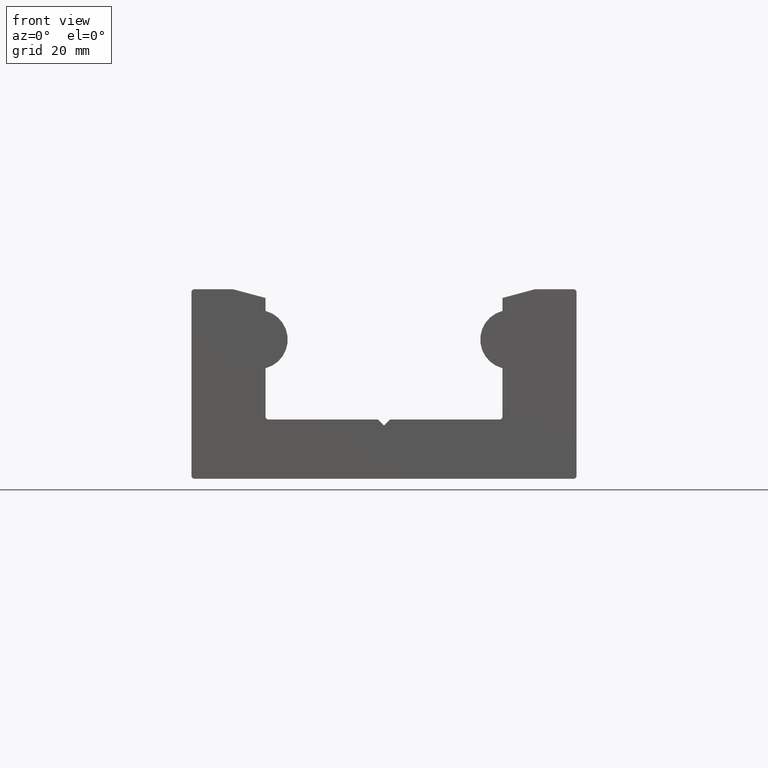
[diagram: clean part render]
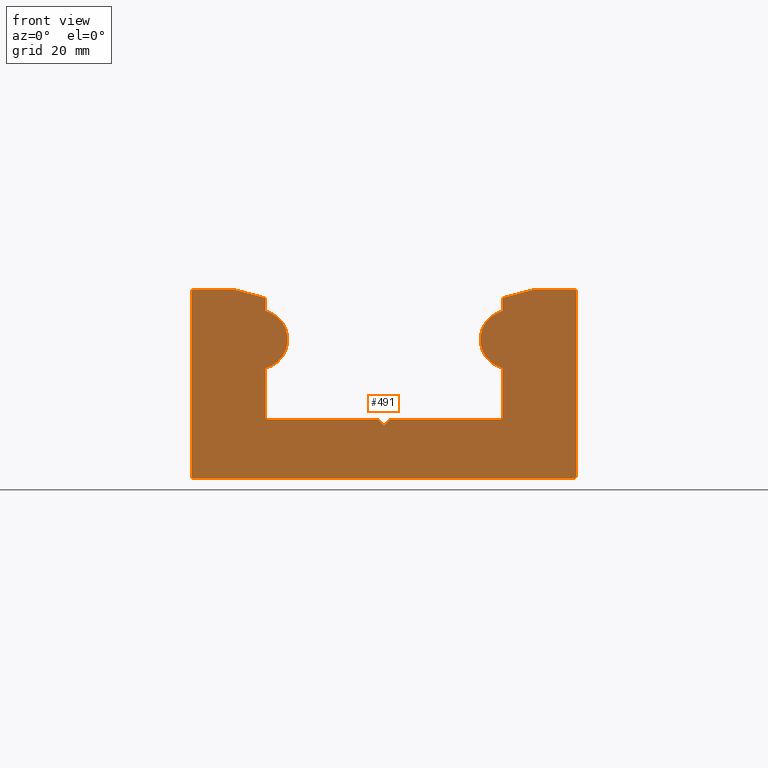
[diagram: same view with one face highlighted and labeled with its STEP entity id]
A machine part, front view. The second image highlights one B-rep face of the part: STEP entity #491.
In plain terms, the highlighted planar face has unit normal (0, 1, 0).
Its self-contained STEP definition (entity closure, byte-faithful):
#30=PLANE('',#555);
#55=FACE_OUTER_BOUND('',#80,.T.);
#80=EDGE_LOOP('',(#433,#434,#435,#436,#437,#438,#439,#440,#441,#442,#443,
#444,#445,#446,#447,#448,#449,#450,#451,#452,#453,#454,#455));
#82=CIRCLE('',#517,5.);
#84=CIRCLE('',#520,4.99999999999999);
#85=CIRCLE('',#523,0.5);
#87=CIRCLE('',#530,0.5);
#89=CIRCLE('',#537,0.5);
#91=CIRCLE('',#544,0.5);
#93=CIRCLE('',#548,0.5);
#95=CIRCLE('',#552,0.5);
#101=LINE('',#715,#154);
#106=LINE('',#729,#159);
#109=LINE('',#735,#162);
#112=LINE('',#740,#165);
#114=LINE('',#744,#167);
#118=LINE('',#756,#171);
#121=LINE('',#762,#174);
#124=LINE('',#768,#177);
#127=LINE('',#774,#180);
#131=LINE('',#785,#184);
#133=LINE('',#789,#186);
#136=LINE('',#795,#189);
#139=LINE('',#801,#192);
#143=LINE('',#813,#196);
#147=LINE('',#825,#200);
#154=VECTOR('',#576,10.);
#159=VECTOR('',#589,10.);
#162=VECTOR('',#594,10.);
#165=VECTOR('',#599,10.);
#167=VECTOR('',#603,10.);
#171=VECTOR('',#615,10.);
#174=VECTOR('',#620,10.);
#177=VECTOR('',#625,10.);
#180=VECTOR('',#630,10.);
#184=VECTOR('',#642,10.);
#186=VECTOR('',#646,10.);
#189=VECTOR('',#651,10.);
#192=VECTOR('',#656,10.);
#196=VECTOR('',#668,10.);
#200=VECTOR('',#680,10.);
#203=VERTEX_POINT('',#695);
#206=VERTEX_POINT('',#700);
#207=VERTEX_POINT('',#704);
#210=VERTEX_POINT('',#709);
#211=VERTEX_POINT('',#713);
#212=VERTEX_POINT('',#714);
#215=VERTEX_POINT('',#722);
#217=VERTEX_POINT('',#728);
#219=VERTEX_POINT('',#734);
#221=VERTEX_POINT('',#743);
#223=VERTEX_POINT('',#749);
#225=VERTEX_POINT('',#755);
#227=VERTEX_POINT('',#761);
#229=VERTEX_POINT('',#767);
#231=VERTEX_POINT('',#773);
#233=VERTEX_POINT('',#779);
#235=VERTEX_POINT('',#788);
#237=VERTEX_POINT('',#794);
#239=VERTEX_POINT('',#800);
#241=VERTEX_POINT('',#806);
#243=VERTEX_POINT('',#812);
#245=VERTEX_POINT('',#818);
#247=VERTEX_POINT('',#824);
#252=EDGE_CURVE('',#203,#206,#82,.T.);
#256=EDGE_CURVE('',#207,#210,#84,.T.);
#257=EDGE_CURVE('',#211,#212,#101,.T.);
#261=EDGE_CURVE('',#215,#211,#85,.T.);
#264=EDGE_CURVE('',#217,#215,#106,.T.);
#267=EDGE_CURVE('',#219,#217,#109,.T.);
#270=EDGE_CURVE('',#203,#219,#112,.T.);
#272=EDGE_CURVE('',#221,#206,#114,.T.);
#275=EDGE_CURVE('',#223,#221,#87,.T.);
#278=EDGE_CURVE('',#225,#223,#118,.T.);
#281=EDGE_CURVE('',#227,#225,#121,.T.);
#284=EDGE_CURVE('',#229,#227,#124,.T.);
#287=EDGE_CURVE('',#231,#229,#127,.T.);
#290=EDGE_CURVE('',#233,#231,#89,.T.);
#293=EDGE_CURVE('',#207,#233,#131,.T.);
#295=EDGE_CURVE('',#235,#210,#133,.T.);
#298=EDGE_CURVE('',#237,#235,#136,.T.);
#301=EDGE_CURVE('',#239,#237,#139,.T.);
#304=EDGE_CURVE('',#241,#239,#91,.T.);
#307=EDGE_CURVE('',#243,#241,#143,.T.);
#310=EDGE_CURVE('',#245,#243,#93,.T.);
#313=EDGE_CURVE('',#247,#245,#147,.T.);
#316=EDGE_CURVE('',#212,#247,#95,.T.);
#433=ORIENTED_EDGE('',*,*,#316,.F.);
#434=ORIENTED_EDGE('',*,*,#257,.F.);
#435=ORIENTED_EDGE('',*,*,#261,.F.);
#436=ORIENTED_EDGE('',*,*,#264,.F.);
#437=ORIENTED_EDGE('',*,*,#267,.F.);
#438=ORIENTED_EDGE('',*,*,#270,.F.);
#439=ORIENTED_EDGE('',*,*,#252,.T.);
#440=ORIENTED_EDGE('',*,*,#272,.F.);
#441=ORIENTED_EDGE('',*,*,#275,.F.);
#442=ORIENTED_EDGE('',*,*,#278,.F.);
#443=ORIENTED_EDGE('',*,*,#281,.F.);
#444=ORIENTED_EDGE('',*,*,#284,.F.);
#445=ORIENTED_EDGE('',*,*,#287,.F.);
#446=ORIENTED_EDGE('',*,*,#290,.F.);
#447=ORIENTED_EDGE('',*,*,#293,.F.);
#448=ORIENTED_EDGE('',*,*,#256,.T.);
#449=ORIENTED_EDGE('',*,*,#295,.F.);
#450=ORIENTED_EDGE('',*,*,#298,.F.);
#451=ORIENTED_EDGE('',*,*,#301,.F.);
#452=ORIENTED_EDGE('',*,*,#304,.F.);
#453=ORIENTED_EDGE('',*,*,#307,.F.);
#454=ORIENTED_EDGE('',*,*,#310,.F.);
#455=ORIENTED_EDGE('',*,*,#313,.F.);
#491=ADVANCED_FACE('',(#55),#30,.F.);
#517=AXIS2_PLACEMENT_3D('',#702,#564,#565);
#520=AXIS2_PLACEMENT_3D('',#711,#572,#573);
#523=AXIS2_PLACEMENT_3D('',#723,#582,#583);
#530=AXIS2_PLACEMENT_3D('',#750,#608,#609);
#537=AXIS2_PLACEMENT_3D('',#780,#635,#636);
#544=AXIS2_PLACEMENT_3D('',#807,#661,#662);
#548=AXIS2_PLACEMENT_3D('',#819,#673,#674);
#552=AXIS2_PLACEMENT_3D('',#830,#685,#686);
#555=AXIS2_PLACEMENT_3D('',#833,#691,#692);
#564=DIRECTION('center_axis',(0.,-1.,0.));
#565=DIRECTION('ref_axis',(1.,0.,0.));
#572=DIRECTION('center_axis',(0.,-1.,0.));
#573=DIRECTION('ref_axis',(1.,0.,0.));
#576=DIRECTION('',(0.,0.,-1.));
#582=DIRECTION('center_axis',(0.,1.,0.));
#583=DIRECTION('ref_axis',(0.,0.,1.));
#589=DIRECTION('',(1.,0.,0.));
#594=DIRECTION('',(0.965925826289069,0.,0.25881904510252));
#599=DIRECTION('',(-2.03239814758226E-15,0.,1.));
#603=DIRECTION('',(0.,0.,1.));
#608=DIRECTION('center_axis',(0.,-1.,0.));
#609=DIRECTION('ref_axis',(-1.,0.,0.));
#615=DIRECTION('',(1.,0.,-1.80036166406601E-16));
#620=DIRECTION('',(0.707106790311605,0.,0.70710677206149));
#625=DIRECTION('',(0.707106772061485,0.,-0.70710679031161));
#630=DIRECTION('',(1.,0.,1.2002411060284E-16));
#635=DIRECTION('center_axis',(0.,-1.,0.));
#636=DIRECTION('ref_axis',(0.,0.,1.));
#642=DIRECTION('',(-2.72154482456863E-16,0.,-1.));
#646=DIRECTION('',(0.,0.,-1.));
#651=DIRECTION('',(0.965925826289068,0.,-0.258819045102521));
#656=DIRECTION('',(1.,0.,0.));
#661=DIRECTION('center_axis',(0.,1.,0.));
#662=DIRECTION('ref_axis',(-1.,0.,0.));
#668=DIRECTION('',(0.,0.,1.));
#673=DIRECTION('center_axis',(0.,1.,0.));
#674=DIRECTION('ref_axis',(0.,0.,-1.));
#680=DIRECTION('',(-1.,0.,0.));
#685=DIRECTION('center_axis',(0.,1.,0.));
#686=DIRECTION('ref_axis',(1.,0.,0.));
#691=DIRECTION('center_axis',(0.,1.,0.));
#692=DIRECTION('ref_axis',(0.,0.,1.));
#695=CARTESIAN_POINT('',(20.,0.,12.3412291827593));
#700=CARTESIAN_POINT('',(20.,0.,2.65877081724073));
#702=CARTESIAN_POINT('Origin',(21.25,0.,7.5));
#704=CARTESIAN_POINT('',(-20.,0.,2.65877081724073));
#709=CARTESIAN_POINT('',(-20.,0.,12.3412291827593));
#711=CARTESIAN_POINT('Origin',(-21.25,0.,7.5));
#713=CARTESIAN_POINT('',(32.5,0.,15.5));
#714=CARTESIAN_POINT('',(32.5,0.,-15.5));
#715=CARTESIAN_POINT('',(32.5,0.,15.5));
#722=CARTESIAN_POINT('',(32.,0.,16.));
#723=CARTESIAN_POINT('Origin',(32.,0.,15.5));
#728=CARTESIAN_POINT('',(25.5,0.,16.));
#729=CARTESIAN_POINT('',(25.5,0.,16.));
#734=CARTESIAN_POINT('',(20.,0.,14.5262794416288));
#735=CARTESIAN_POINT('',(20.,0.,14.5262794416288));
#740=CARTESIAN_POINT('',(20.,0.,12.3412291827593));
#743=CARTESIAN_POINT('',(20.,0.,-5.50000000000001));
#744=CARTESIAN_POINT('',(20.,0.,-5.50000000000001));
#749=CARTESIAN_POINT('',(19.5,0.,-6.00000000000001));
#750=CARTESIAN_POINT('Origin',(19.5,0.,-5.50000000000001));
#755=CARTESIAN_POINT('',(1.00000002580957,0.,-6.));
#756=CARTESIAN_POINT('',(1.00000002580957,0.,-6.));
#761=CARTESIAN_POINT('',(0.,0.,-7.00000000000001));
#762=CARTESIAN_POINT('',(0.,0.,-7.00000000000001));
#767=CARTESIAN_POINT('',(-0.999999974190432,0.,-6.));
#768=CARTESIAN_POINT('',(-0.999999974190432,0.,-6.));
#773=CARTESIAN_POINT('',(-19.5,0.,-6.00000000000001));
#774=CARTESIAN_POINT('',(-19.5,0.,-6.00000000000001));
#779=CARTESIAN_POINT('',(-20.,0.,-5.5));
#780=CARTESIAN_POINT('Origin',(-19.5,0.,-5.5));
#785=CARTESIAN_POINT('',(-20.,0.,2.65877081724073));
#788=CARTESIAN_POINT('',(-20.,0.,14.5262794416288));
#789=CARTESIAN_POINT('',(-20.,0.,14.5262794416288));
#794=CARTESIAN_POINT('',(-25.5,0.,16.));
#795=CARTESIAN_POINT('',(-25.5,0.,16.));
#800=CARTESIAN_POINT('',(-32.,0.,16.));
#801=CARTESIAN_POINT('',(-32.,0.,16.));
#806=CARTESIAN_POINT('',(-32.5,0.,15.5));
#807=CARTESIAN_POINT('Origin',(-32.,0.,15.5));
#812=CARTESIAN_POINT('',(-32.5,0.,-15.5));
#813=CARTESIAN_POINT('',(-32.5,0.,-15.5));
#818=CARTESIAN_POINT('',(-32.,0.,-16.));
#819=CARTESIAN_POINT('Origin',(-32.,0.,-15.5));
#824=CARTESIAN_POINT('',(32.,0.,-16.));
#825=CARTESIAN_POINT('',(32.,0.,-16.));
#830=CARTESIAN_POINT('Origin',(32.,0.,-15.5));
#833=CARTESIAN_POINT('Origin',(1.29523736400767E-11,0.,-2.68312830319299));